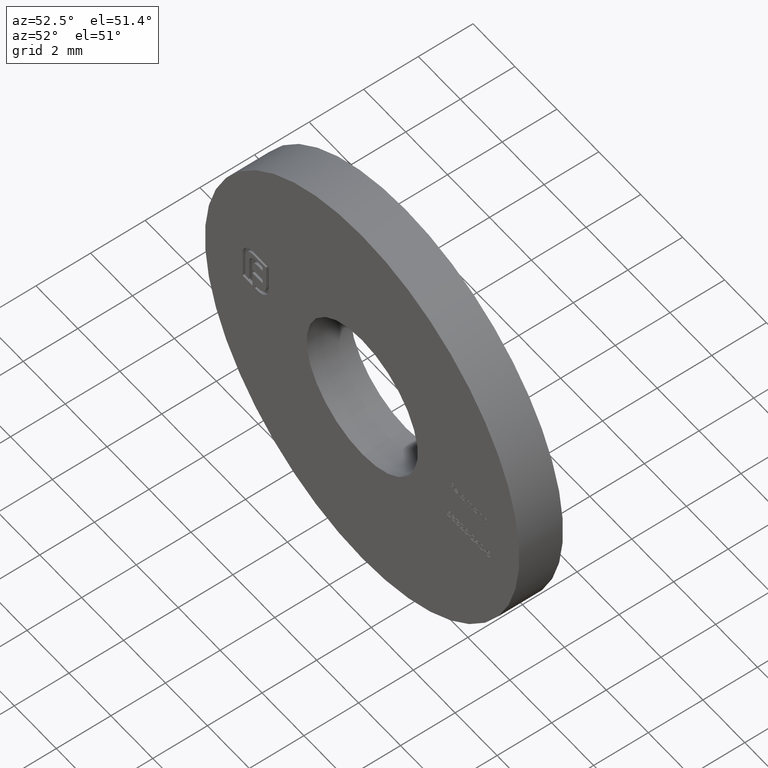
[diagram: clean part render]
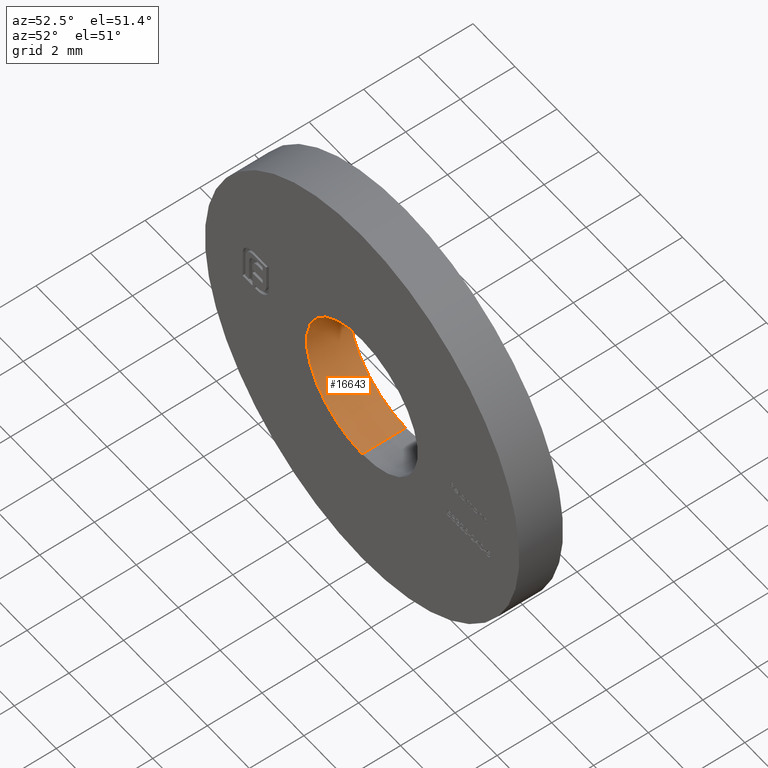
[diagram: same view with one face highlighted and labeled with its STEP entity id]
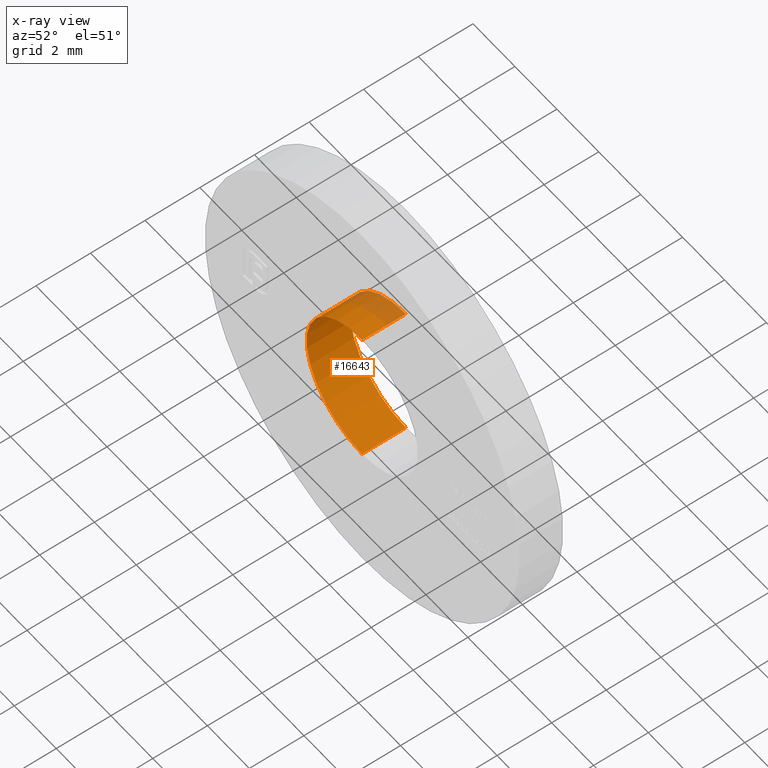
[diagram: x-ray of the same camera — body ghosted, the highlighted face saturated]
A machine part, auxiliary view. The second image highlights one B-rep face of the part: STEP entity #16643.
The next image is the same camera in x-ray: the body ghosted, the highlighted face saturated — about 11% of this face is hidden behind the body in this view.
In plain terms, the highlighted cylindrical surface (partial cylindrical patch) has radius 2.65 mm, axis along (-0, -1, -0).
Its self-contained STEP definition (entity closure, byte-faithful):
#244 = EDGE_CURVE ( 'NONE', #14108, #396, #2093, .T. ) ;
#396 = VERTEX_POINT ( 'NONE', #7471 ) ;
#1520 = CARTESIAN_POINT ( 'NONE',  ( 3.245314017740485962E-16, 0.8000000000000000444, 2.649999999999999911 ) ) ;
#1570 = ORIENTED_EDGE ( 'NONE', *, *, #4085, .T. ) ;
#2093 = LINE ( 'NONE', #16245, #15064 ) ;
#2123 = VERTEX_POINT ( 'NONE', #15358 ) ;
#3653 = ORIENTED_EDGE ( 'NONE', *, *, #244, .T. ) ;
#3957 = DIRECTION ( 'NONE',  ( 0.000000000000000000, 0.000000000000000000, 1.000000000000000000 ) ) ;
#4085 = EDGE_CURVE ( 'NONE', #13784, #14108, #12969, .T. ) ;
#5610 = LINE ( 'NONE', #14545, #7829 ) ;
#5630 = AXIS2_PLACEMENT_3D ( 'NONE', #8290, #10633, #15967 ) ;
#5824 = ORIENTED_EDGE ( 'NONE', *, *, #12649, .F. ) ;
#6299 = DIRECTION ( 'NONE',  ( -0.000000000000000000, -1.000000000000000000, -0.000000000000000000 ) ) ;
#7471 = CARTESIAN_POINT ( 'NONE',  ( 3.245314017740485962E-16, -0.8000000000000000444, 2.649999999999999911 ) ) ;
#7595 = CARTESIAN_POINT ( 'NONE',  ( 0.000000000000000000, 0.8000000000000000444, 0.000000000000000000 ) ) ;
#7829 = VECTOR ( 'NONE', #14495, 1000.000000000000000 ) ;
#8035 = AXIS2_PLACEMENT_3D ( 'NONE', #7595, #6299, #12566 ) ;
#8290 = CARTESIAN_POINT ( 'NONE',  ( 0.000000000000000000, -0.8000000000000000444, 0.000000000000000000 ) ) ;
#8428 = AXIS2_PLACEMENT_3D ( 'NONE', #15554, #11722, #3957 ) ;
#9825 = CYLINDRICAL_SURFACE ( 'NONE', #8035, 2.649999999999999911 ) ;
#10633 = DIRECTION ( 'NONE',  ( 0.000000000000000000, 1.000000000000000000, 0.000000000000000000 ) ) ;
#10634 = FACE_OUTER_BOUND ( 'NONE', #11159, .T. ) ;
#11159 = EDGE_LOOP ( 'NONE', ( #1570, #3653, #5824, #14641 ) ) ;
#11722 = DIRECTION ( 'NONE',  ( 0.000000000000000000, 1.000000000000000000, 0.000000000000000000 ) ) ;
#12566 = DIRECTION ( 'NONE',  ( 0.000000000000000000, 0.000000000000000000, -1.000000000000000000 ) ) ;
#12649 = EDGE_CURVE ( 'NONE', #2123, #396, #16363, .T. ) ;
#12969 = CIRCLE ( 'NONE', #8428, 2.649999999999999911 ) ;
#13712 = DIRECTION ( 'NONE',  ( -0.000000000000000000, -1.000000000000000000, -0.000000000000000000 ) ) ;
#13784 = VERTEX_POINT ( 'NONE', #14931 ) ;
#14108 = VERTEX_POINT ( 'NONE', #1520 ) ;
#14495 = DIRECTION ( 'NONE',  ( -0.000000000000000000, -1.000000000000000000, -0.000000000000000000 ) ) ;
#14545 = CARTESIAN_POINT ( 'NONE',  ( 0.000000000000000000, 0.8000000000000000444, -2.649999999999999911 ) ) ;
#14596 = EDGE_CURVE ( 'NONE', #13784, #2123, #5610, .T. ) ;
#14641 = ORIENTED_EDGE ( 'NONE', *, *, #14596, .F. ) ;
#14931 = CARTESIAN_POINT ( 'NONE',  ( 0.000000000000000000, 0.8000000000000000444, -2.649999999999999911 ) ) ;
#15064 = VECTOR ( 'NONE', #13712, 1000.000000000000000 ) ;
#15358 = CARTESIAN_POINT ( 'NONE',  ( 0.000000000000000000, -0.8000000000000000444, -2.649999999999999911 ) ) ;
#15554 = CARTESIAN_POINT ( 'NONE',  ( 0.000000000000000000, 0.8000000000000000444, 0.000000000000000000 ) ) ;
#15967 = DIRECTION ( 'NONE',  ( 0.000000000000000000, 0.000000000000000000, 1.000000000000000000 ) ) ;
#16245 = CARTESIAN_POINT ( 'NONE',  ( 3.245314017740485962E-16, 0.8000000000000000444, 2.649999999999999911 ) ) ;
#16363 = CIRCLE ( 'NONE', #5630, 2.649999999999999911 ) ;
#16643 = ADVANCED_FACE ( 'NONE', ( #10634 ), #9825, .F. ) ;